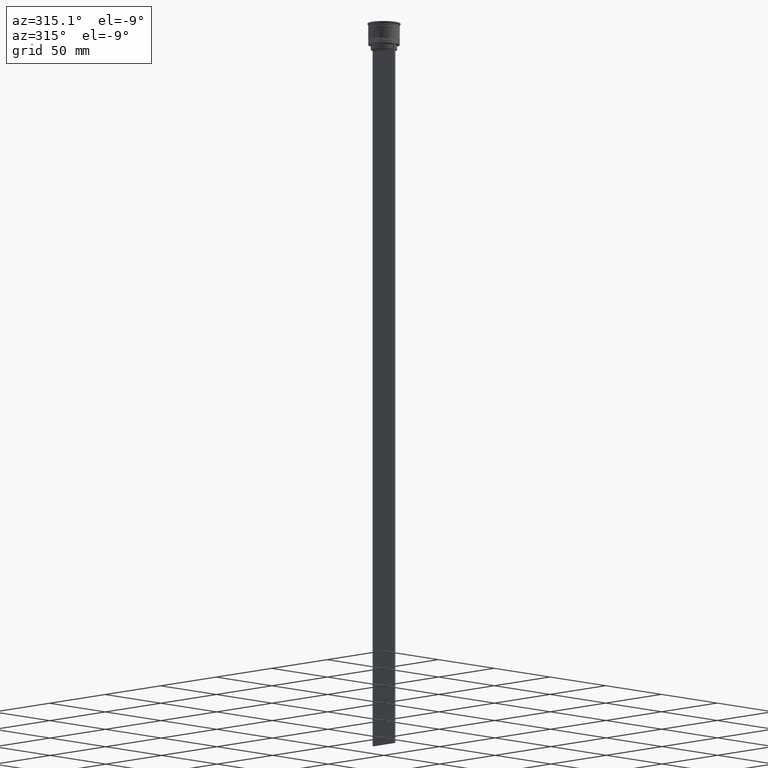
[diagram: clean part render]
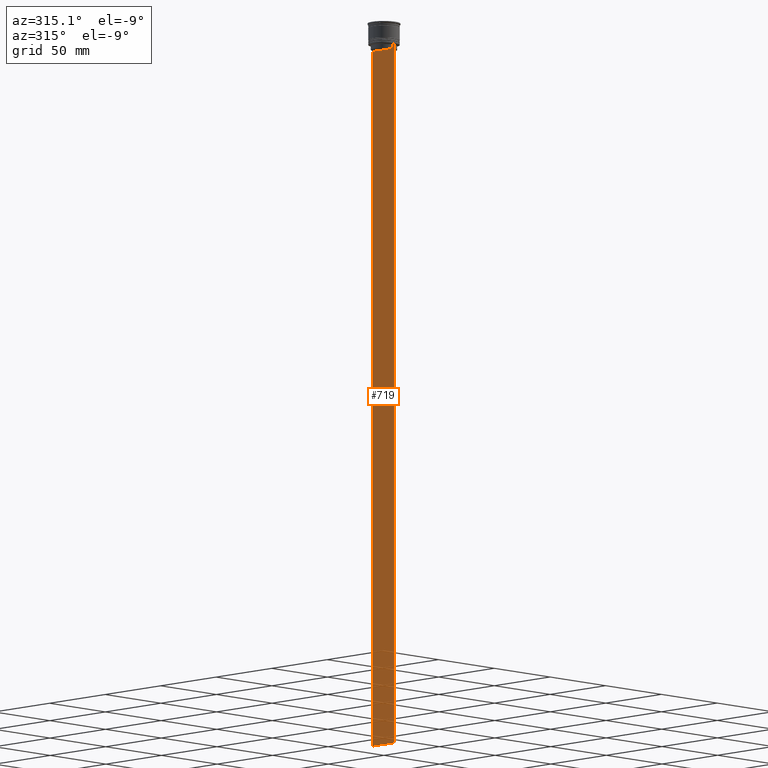
[diagram: same view with one face highlighted and labeled with its STEP entity id]
A machine part, auxiliary view. The second image highlights one B-rep face of the part: STEP entity #719.
In plain terms, the highlighted planar face has unit normal (-1, 0, 0).
Its self-contained STEP definition (entity closure, byte-faithful):
#76 = CARTESIAN_POINT ( 'NONE',  ( -0.5000000000000001110, -8.385105843100616241, 0.000000000000000000 ) ) ;
#113 = LINE ( 'NONE', #2078, #1296 ) ;
#165 = EDGE_CURVE ( 'NONE', #2211, #1226, #178, .T. ) ;
#178 = LINE ( 'NONE', #1576, #1660 ) ;
#250 = VERTEX_POINT ( 'NONE', #2535 ) ;
#269 = CARTESIAN_POINT ( 'NONE',  ( -0.5000000000000001110, -8.552060194457773434, -14.33334167772667023 ) ) ;
#277 = B_SPLINE_CURVE_WITH_KNOTS ( 'NONE', 3,
 ( #1443, #269, #864, #1294 ),
 .UNSPECIFIED., .F., .F.,
 ( 4, 4 ),
 ( 0.03898465126933130243, 0.03969388910599658260 ),
 .UNSPECIFIED. ) ;
#317 = CARTESIAN_POINT ( 'NONE',  ( -0.5000000000000001110, 8.385105843100616241, 0.000000000000000000 ) ) ;
#329 = CARTESIAN_POINT ( 'NONE',  ( -0.5000000000000001110, 8.385105843100616241, -14.50000000000000000 ) ) ;
#368 = CARTESIAN_POINT ( 'NONE',  ( -0.5000000000000001110, 9.750000000000001776, -464.0000000000000000 ) ) ;
#389 = VERTEX_POINT ( 'NONE', #737 ) ;
#393 = CARTESIAN_POINT ( 'NONE',  ( -0.5000000000000001110, -9.749999999999998224, -14.00000000000000178 ) ) ;
#407 = ORIENTED_EDGE ( 'NONE', *, *, #1171, .F. ) ;
#466 = DIRECTION ( 'NONE',  ( 0.000000000000000000, 1.000000000000000000, 0.000000000000000000 ) ) ;
#594 = VECTOR ( 'NONE', #2251, 1000.000000000000000 ) ;
#656 = VECTOR ( 'NONE', #1924, 1000.000000000000000 ) ;
#667 = ORIENTED_EDGE ( 'NONE', *, *, #1446, .F. ) ;
#704 = CARTESIAN_POINT ( 'NONE',  ( -0.5000000000000001110, -9.749999999999998224, -464.0000000000000000 ) ) ;
#707 = LINE ( 'NONE', #2309, #2021 ) ;
#708 = CARTESIAN_POINT ( 'NONE',  ( -0.5000000000000001110, 8.719005771582351016, -14.16667453442324742 ) ) ;
#719 = ADVANCED_FACE ( 'NONE', ( #1702 ), #2088, .T. ) ;
#737 = CARTESIAN_POINT ( 'NONE',  ( -0.5000000000000001110, -8.385105843100616241, -14.50000000000000000 ) ) ;
#748 = CARTESIAN_POINT ( 'NONE',  ( -0.5000000000000001110, 8.885943956609230199, -14.00000000000000178 ) ) ;
#837 = ORIENTED_EDGE ( 'NONE', *, *, #1831, .F. ) ;
#840 = VERTEX_POINT ( 'NONE', #1923 ) ;
#848 = ORIENTED_EDGE ( 'NONE', *, *, #1450, .F. ) ;
#864 = CARTESIAN_POINT ( 'NONE',  ( -0.5000000000000001110, -8.719005764482790966, -14.16667454151159689 ) ) ;
#879 = LINE ( 'NONE', #704, #1088 ) ;
#924 = DIRECTION ( 'NONE',  ( 0.000000000000000000, -1.000000000000000000, 0.000000000000000000 ) ) ;
#935 = ORIENTED_EDGE ( 'NONE', *, *, #1238, .F. ) ;
#989 = CARTESIAN_POINT ( 'NONE',  ( -0.5000000000000001110, -8.885943956609230199, -14.00000000000000178 ) ) ;
#1088 = VECTOR ( 'NONE', #466, 1000.000000000000000 ) ;
#1106 = DIRECTION ( 'NONE',  ( 0.000000000000000000, 0.000000000000000000, -1.000000000000000000 ) ) ;
#1117 = CARTESIAN_POINT ( 'NONE',  ( -0.5000000000000001110, -9.749999999999998224, 5.525624189766635830 ) ) ;
#1171 = EDGE_CURVE ( 'NONE', #250, #1549, #1290, .T. ) ;
#1201 = EDGE_LOOP ( 'NONE', ( #935, #2037, #1579, #848, #2486, #667, #837, #2471, #2141, #407 ) ) ;
#1226 = VERTEX_POINT ( 'NONE', #2298 ) ;
#1238 = EDGE_CURVE ( 'NONE', #1226, #250, #1996, .T. ) ;
#1266 = VECTOR ( 'NONE', #1511, 1000.000000000000000 ) ;
#1290 = LINE ( 'NONE', #317, #1266 ) ;
#1294 = CARTESIAN_POINT ( 'NONE',  ( -0.5000000000000001110, -8.885943956609230199, -14.00000000000000178 ) ) ;
#1296 = VECTOR ( 'NONE', #1106, 1000.000000000000000 ) ;
#1346 = VERTEX_POINT ( 'NONE', #393 ) ;
#1443 = CARTESIAN_POINT ( 'NONE',  ( -0.5000000000000001110, -8.385105843100616241, -14.50000000000000000 ) ) ;
#1446 = EDGE_CURVE ( 'NONE', #1704, #1346, #1678, .T. ) ;
#1450 = EDGE_CURVE ( 'NONE', #840, #2393, #879, .T. ) ;
#1488 = EDGE_CURVE ( 'NONE', #2204, #389, #1694, .T. ) ;
#1505 = EDGE_CURVE ( 'NONE', #2211, #2393, #113, .T. ) ;
#1511 = DIRECTION ( 'NONE',  ( 0.000000000000000000, 0.000000000000000000, -1.000000000000000000 ) ) ;
#1549 = VERTEX_POINT ( 'NONE', #2503 ) ;
#1576 = CARTESIAN_POINT ( 'NONE',  ( -0.5000000000000001110, -9.749999999999998224, -14.00000000000000178 ) ) ;
#1579 = ORIENTED_EDGE ( 'NONE', *, *, #1505, .T. ) ;
#1614 = AXIS2_PLACEMENT_3D ( 'NONE', #1727, #2525, #1716 ) ;
#1660 = VECTOR ( 'NONE', #2373, 1000.000000000000000 ) ;
#1678 = LINE ( 'NONE', #1874, #594 ) ;
#1694 = LINE ( 'NONE', #76, #2386 ) ;
#1702 = FACE_OUTER_BOUND ( 'NONE', #1201, .T. ) ;
#1704 = VERTEX_POINT ( 'NONE', #989 ) ;
#1716 = DIRECTION ( 'NONE',  ( 0.000000000000000000, 0.000000000000000000, 1.000000000000000000 ) ) ;
#1727 = CARTESIAN_POINT ( 'NONE',  ( -0.5000000000000001110, -9.749999999999998224, 5.525624189766635830 ) ) ;
#1831 = EDGE_CURVE ( 'NONE', #389, #1704, #277, .T. ) ;
#1874 = CARTESIAN_POINT ( 'NONE',  ( -0.5000000000000001110, -9.749999999999998224, -14.00000000000000178 ) ) ;
#1900 = LINE ( 'NONE', #1117, #656 ) ;
#1904 = CARTESIAN_POINT ( 'NONE',  ( -0.5000000000000001110, -8.385105843100616241, -17.00000000000000000 ) ) ;
#1923 = CARTESIAN_POINT ( 'NONE',  ( -0.5000000000000001110, -9.749999999999998224, -464.0000000000000000 ) ) ;
#1924 = DIRECTION ( 'NONE',  ( 0.000000000000000000, 0.000000000000000000, -1.000000000000000000 ) ) ;
#1996 = B_SPLINE_CURVE_WITH_KNOTS ( 'NONE', 3,
 ( #748, #708, #2113, #329 ),
 .UNSPECIFIED., .F., .F.,
 ( 4, 4 ),
 ( 0.01511546479386908018, 0.01582316445439079997 ),
 .UNSPECIFIED. ) ;
#2019 = EDGE_CURVE ( 'NONE', #1346, #840, #1900, .T. ) ;
#2021 = VECTOR ( 'NONE', #924, 1000.000000000000000 ) ;
#2037 = ORIENTED_EDGE ( 'NONE', *, *, #165, .F. ) ;
#2078 = CARTESIAN_POINT ( 'NONE',  ( -0.5000000000000001110, 9.750000000000001776, 5.525624189766635830 ) ) ;
#2082 = CARTESIAN_POINT ( 'NONE',  ( -0.5000000000000001110, 9.749999999999998224, -14.00000000000000178 ) ) ;
#2088 = PLANE ( 'NONE',  #1614 ) ;
#2113 = CARTESIAN_POINT ( 'NONE',  ( -0.5000000000000001110, 8.552060201981381837, -14.33334167021640226 ) ) ;
#2141 = ORIENTED_EDGE ( 'NONE', *, *, #2286, .F. ) ;
#2204 = VERTEX_POINT ( 'NONE', #1904 ) ;
#2211 = VERTEX_POINT ( 'NONE', #2082 ) ;
#2251 = DIRECTION ( 'NONE',  ( 0.000000000000000000, -1.000000000000000000, 0.000000000000000000 ) ) ;
#2286 = EDGE_CURVE ( 'NONE', #1549, #2204, #707, .T. ) ;
#2298 = CARTESIAN_POINT ( 'NONE',  ( -0.5000000000000001110, 8.885943956609230199, -14.00000000000000178 ) ) ;
#2309 = CARTESIAN_POINT ( 'NONE',  ( -0.5000000000000001110, 8.400000000000003908, -17.00000000000000000 ) ) ;
#2373 = DIRECTION ( 'NONE',  ( 0.000000000000000000, -1.000000000000000000, 0.000000000000000000 ) ) ;
#2386 = VECTOR ( 'NONE', #2474, 1000.000000000000000 ) ;
#2393 = VERTEX_POINT ( 'NONE', #368 ) ;
#2471 = ORIENTED_EDGE ( 'NONE', *, *, #1488, .F. ) ;
#2474 = DIRECTION ( 'NONE',  ( -0.000000000000000000, -0.000000000000000000, 1.000000000000000000 ) ) ;
#2486 = ORIENTED_EDGE ( 'NONE', *, *, #2019, .F. ) ;
#2503 = CARTESIAN_POINT ( 'NONE',  ( -0.5000000000000001110, 8.385105843100616241, -17.00000000000000000 ) ) ;
#2525 = DIRECTION ( 'NONE',  ( -1.000000000000000000, 0.000000000000000000, 0.000000000000000000 ) ) ;
#2535 = CARTESIAN_POINT ( 'NONE',  ( -0.5000000000000001110, 8.385105843100616241, -14.50000000000000000 ) ) ;